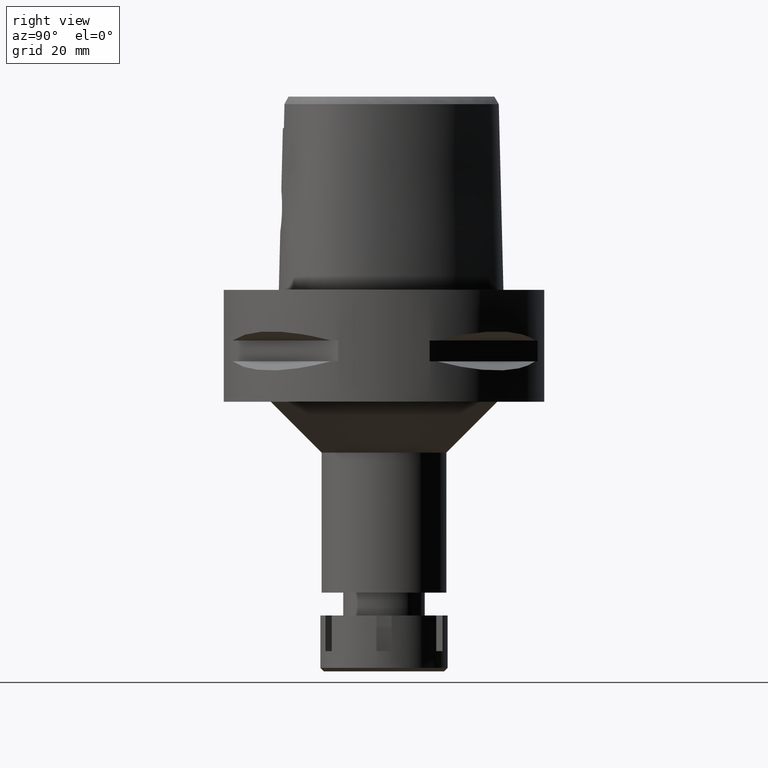
[diagram: clean part render]
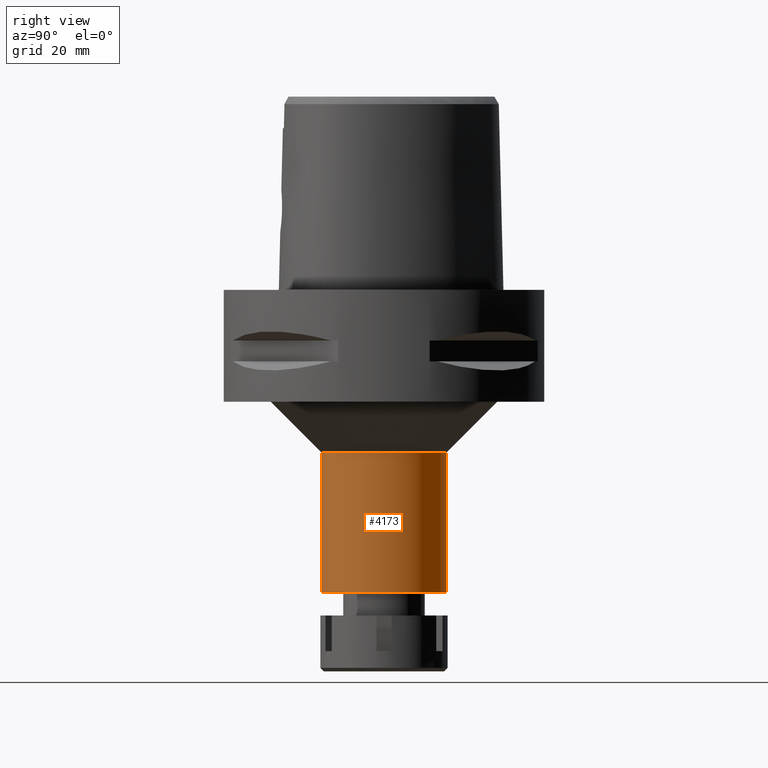
[diagram: same view with one face highlighted and labeled with its STEP entity id]
A machine part, right view. The second image highlights one B-rep face of the part: STEP entity #4173.
In plain terms, the highlighted cylindrical surface (partial cylindrical patch) has radius 12.25 mm, axis along (0, 0, -1).
Its self-contained STEP definition (entity closure, byte-faithful):
#269 = CARTESIAN_POINT ( 'NONE',  ( 0.0000000000000000000, 1.266897113717999920E-14, -59.50000000000000000 ) ) ;
#283 = VECTOR ( 'NONE', #4674, 1000.000000000000000 ) ;
#284 = VECTOR ( 'NONE', #3192, 1000.000000000000000 ) ;
#290 = AXIS2_PLACEMENT_3D ( 'NONE', #269, #2267, #3638 ) ;
#306 = AXIS2_PLACEMENT_3D ( 'NONE', #2018, #685, #4533 ) ;
#355 = EDGE_CURVE ( 'NONE', #455, #819, #5093, .T. ) ;
#455 = VERTEX_POINT ( 'NONE', #2304 ) ;
#685 = DIRECTION ( 'NONE',  ( 0.0000000000000000000, 0.0000000000000000000, -1.000000000000000000 ) ) ;
#692 = CARTESIAN_POINT ( 'NONE',  ( 0.0000000000000000000, -12.25000000000000000, -59.50000000000000000 ) ) ;
#819 = VERTEX_POINT ( 'NONE', #3968 ) ;
#855 = VERTEX_POINT ( 'NONE', #692 ) ;
#1051 = CARTESIAN_POINT ( 'NONE',  ( 0.0000000000000000000, -12.25000000000000000, -32.00000000000000000 ) ) ;
#1147 = EDGE_CURVE ( 'NONE', #5347, #855, #5296, .T. ) ;
#1286 = DIRECTION ( 'NONE',  ( 0.0000000000000000000, 1.000000000000000000, 0.0000000000000000000 ) ) ;
#1672 = CARTESIAN_POINT ( 'NONE',  ( 0.0000000000000000000, -12.25000000000000000, -32.00000000000000000 ) ) ;
#1879 = AXIS2_PLACEMENT_3D ( 'NONE', #5062, #2131, #1286 ) ;
#2018 = CARTESIAN_POINT ( 'NONE',  ( 0.0000000000000000000, 1.266897113717999920E-14, 3.449999999999999734 ) ) ;
#2044 = CIRCLE ( 'NONE', #1879, 12.25000000000000000 ) ;
#2131 = DIRECTION ( 'NONE',  ( 0.0000000000000000000, 0.0000000000000000000, -1.000000000000000000 ) ) ;
#2142 = EDGE_CURVE ( 'NONE', #855, #819, #5240, .T. ) ;
#2267 = DIRECTION ( 'NONE',  ( 0.0000000000000000000, 0.0000000000000000000, 1.000000000000000000 ) ) ;
#2304 = CARTESIAN_POINT ( 'NONE',  ( 0.0000000000000000000, 12.25000000000000000, -32.00000000000000000 ) ) ;
#2369 = ORIENTED_EDGE ( 'NONE', *, *, #2482, .T. ) ;
#2482 = EDGE_CURVE ( 'NONE', #455, #5347, #2044, .T. ) ;
#2858 = CYLINDRICAL_SURFACE ( 'NONE', #306, 12.25000000000000000 ) ;
#2886 = FACE_OUTER_BOUND ( 'NONE', #3640, .T. ) ;
#3192 = DIRECTION ( 'NONE',  ( 0.0000000000000000000, 0.0000000000000000000, -1.000000000000000000 ) ) ;
#3638 = DIRECTION ( 'NONE',  ( 0.0000000000000000000, -1.000000000000000000, 0.0000000000000000000 ) ) ;
#3640 = EDGE_LOOP ( 'NONE', ( #2369, #5095, #4339, #4215 ) ) ;
#3968 = CARTESIAN_POINT ( 'NONE',  ( 0.0000000000000000000, 12.25000000000000000, -59.50000000000000000 ) ) ;
#4173 = ADVANCED_FACE ( 'NONE', ( #2886 ), #2858, .T. ) ;
#4215 = ORIENTED_EDGE ( 'NONE', *, *, #355, .F. ) ;
#4339 = ORIENTED_EDGE ( 'NONE', *, *, #2142, .T. ) ;
#4533 = DIRECTION ( 'NONE',  ( 0.0000000000000000000, -1.000000000000000000, 0.0000000000000000000 ) ) ;
#4674 = DIRECTION ( 'NONE',  ( 0.0000000000000000000, 0.0000000000000000000, -1.000000000000000000 ) ) ;
#4706 = CARTESIAN_POINT ( 'NONE',  ( 0.0000000000000000000, 12.25000000000000000, -32.00000000000000000 ) ) ;
#5062 = CARTESIAN_POINT ( 'NONE',  ( 0.0000000000000000000, 0.0000000000000000000, -32.00000000000000000 ) ) ;
#5093 = LINE ( 'NONE', #4706, #283 ) ;
#5095 = ORIENTED_EDGE ( 'NONE', *, *, #1147, .T. ) ;
#5240 = CIRCLE ( 'NONE', #290, 12.25000000000000000 ) ;
#5296 = LINE ( 'NONE', #1051, #284 ) ;
#5347 = VERTEX_POINT ( 'NONE', #1672 ) ;